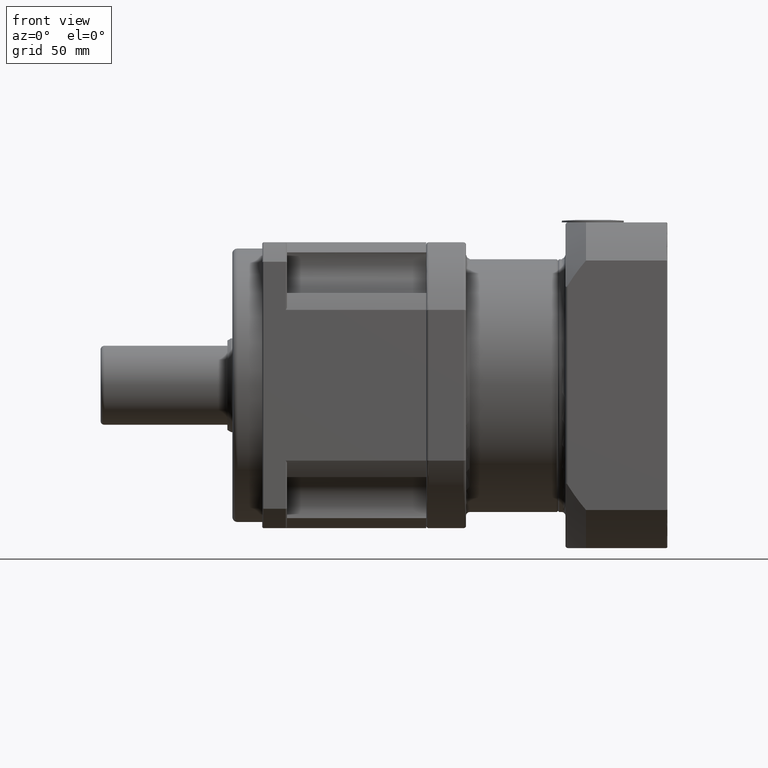
[diagram: clean part render]
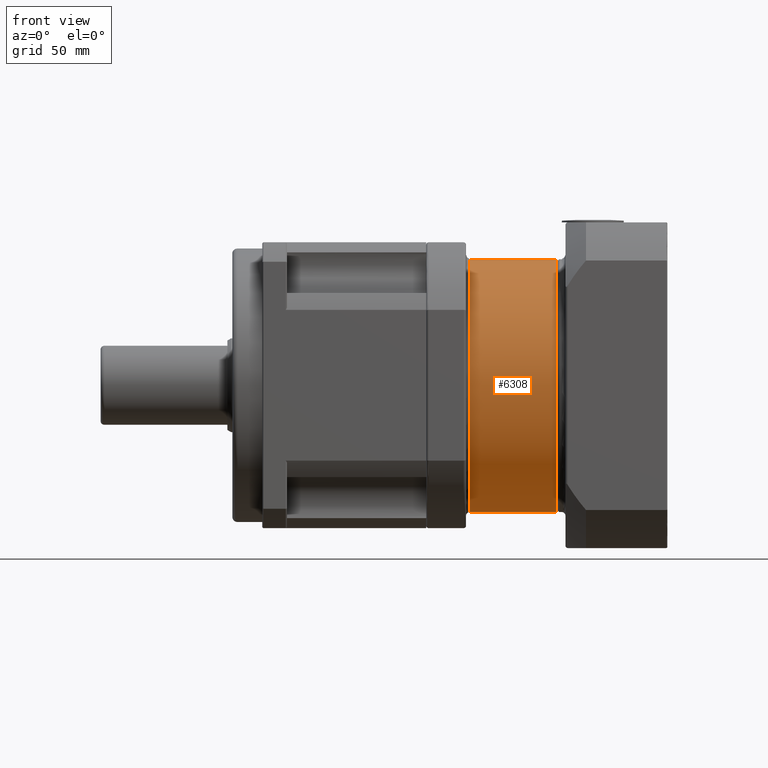
[diagram: same view with one face highlighted and labeled with its STEP entity id]
A machine part, front view. The second image highlights one B-rep face of the part: STEP entity #6308.
In plain terms, the highlighted cylindrical surface (bore or boss wall) has radius 51 mm, axis along (1, 0, 0).
Its self-contained STEP definition (entity closure, byte-faithful):
#1204=FACE_BOUND('',#2053,.T.);
#1506=FACE_OUTER_BOUND('',#2052,.T.);
#2052=EDGE_LOOP('',(#4754));
#2053=EDGE_LOOP('',(#4755));
#2531=CIRCLE('',#6905,51.);
#2541=CIRCLE('',#6917,51.);
#2990=VERTEX_POINT('',#10403);
#3004=VERTEX_POINT('',#10433);
#3639=EDGE_CURVE('',#2990,#2990,#2531,.T.);
#3653=EDGE_CURVE('',#3004,#3004,#2541,.T.);
#4754=ORIENTED_EDGE('',*,*,#3653,.F.);
#4755=ORIENTED_EDGE('',*,*,#3639,.F.);
#5734=CYLINDRICAL_SURFACE('',#6916,51.);
#6308=ADVANCED_FACE('',(#1506,#1204),#5734,.T.);
#6905=AXIS2_PLACEMENT_3D('',#10404,#8153,#8154);
#6916=AXIS2_PLACEMENT_3D('',#10432,#8179,#8180);
#6917=AXIS2_PLACEMENT_3D('',#10434,#8181,#8182);
#8153=DIRECTION('center_axis',(-1.,-4.85755800782923E-16,-1.72164054506969E-16));
#8154=DIRECTION('ref_axis',(-1.72164054506969E-16,-1.32271987416885E-15,
1.));
#8179=DIRECTION('center_axis',(1.,4.85755800782923E-16,1.72164054506969E-16));
#8180=DIRECTION('ref_axis',(-1.72164054506969E-16,-1.32271987416885E-15,
1.));
#8181=DIRECTION('center_axis',(1.,4.85755800782923E-16,1.72164054506969E-16));
#8182=DIRECTION('ref_axis',(-1.72164054506969E-16,-1.32271987416885E-15,
1.));
#10403=CARTESIAN_POINT('',(0.94860439311066,-123.244525766391,-155.9535040948));
#10404=CARTESIAN_POINT('Origin',(0.948604393110651,-123.244525766391,-104.9535040948));
#10432=CARTESIAN_POINT('Origin',(-0.551395606889349,-123.244525766391,-104.9535040948));
#10433=CARTESIAN_POINT('',(35.9486043931107,-123.244525766391,-155.9535040948));
#10434=CARTESIAN_POINT('Origin',(35.9486043931107,-123.244525766391,-104.9535040948));